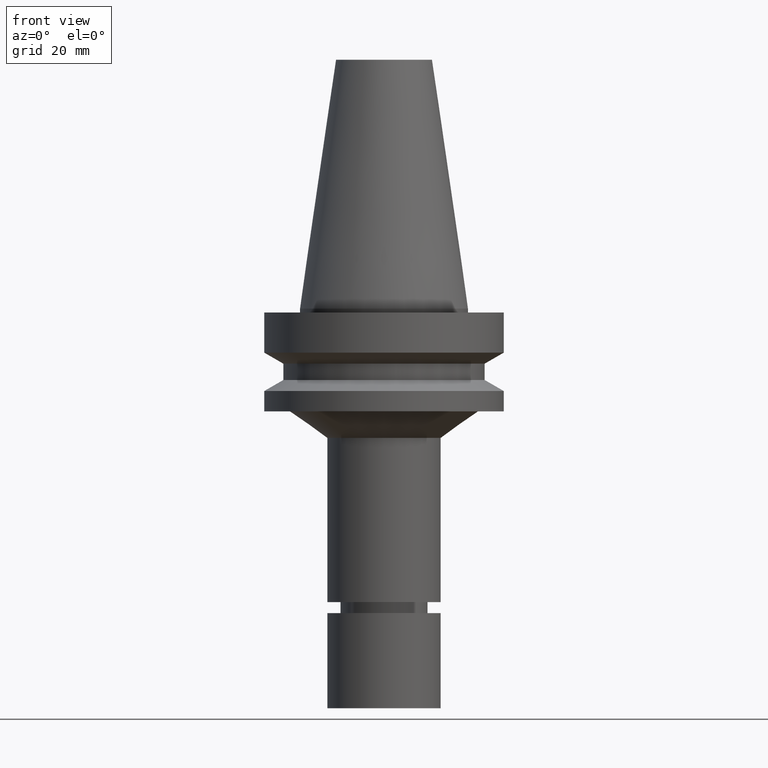
[diagram: clean part render]
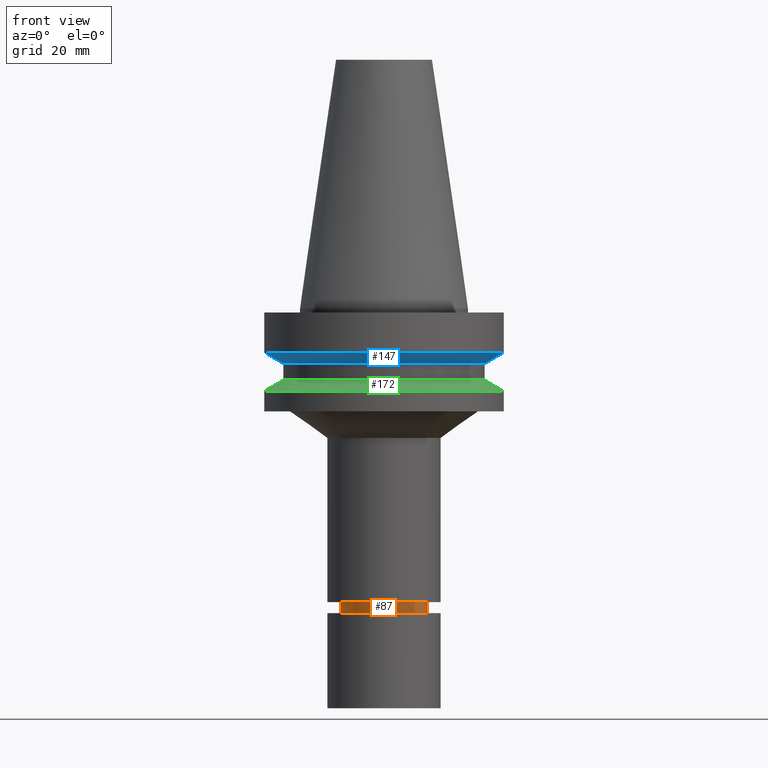
[diagram: same view with three faces highlighted in distinct colors, each labeled with its STEP entity id]
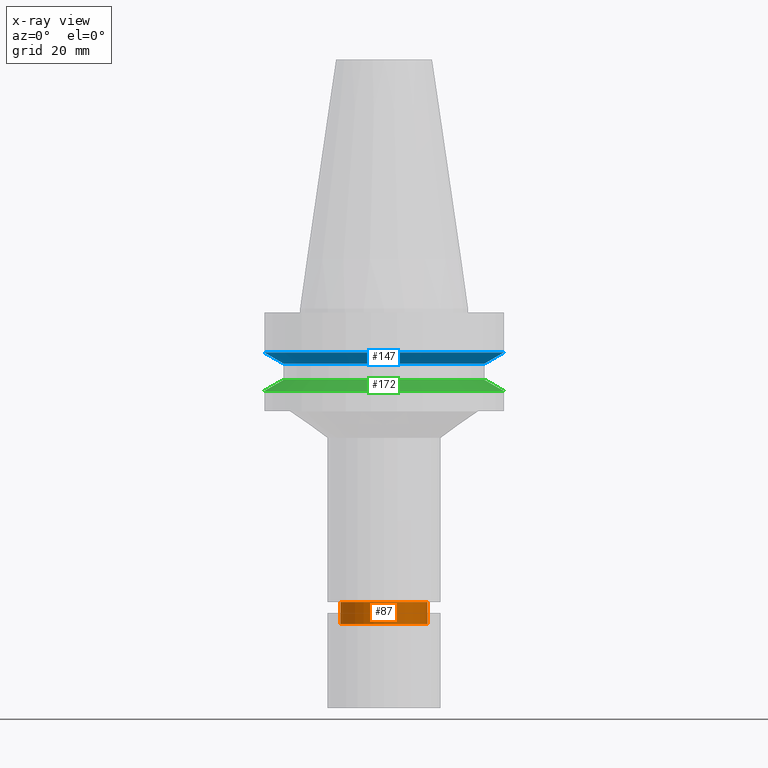
[diagram: x-ray of the same camera — body ghosted, the three highlighted faces saturated]
A machine part, front view with three faces highlighted in distinct colors.
The next image is the same camera in x-ray (body ghosted, the three faces saturated) — at least one of them is partly hidden behind the body in this view.
Their STEP definitions:

[orange] entity #87 — the highlighted cylindrical surface (bore or boss wall) has radius 11.5 mm, axis along (0, -0, -1).
#87=ADVANCED_FACE('Unnamed[1]',(#219,#220),#221,.T.);
#98=EDGE_CURVE('Unnamed[1]',#237,#237,#238,.T.);
#159=EDGE_CURVE('Unnamed[1]',#330,#330,#331,.T.);
#219=FACE_BOUND('',#399,.T.);
#220=FACE_BOUND('',#400,.T.);
#221=CYLINDRICAL_SURFACE('',#401,11.4999999999963);
#237=VERTEX_POINT('',#422);
#238=CIRCLE('',#423,11.4999999999906);
#330=VERTEX_POINT('',#536);
#331=CIRCLE('',#537,11.500000000002);
#399=EDGE_LOOP('',(#601));
#400=EDGE_LOOP('',(#602));
#401=AXIS2_PLACEMENT_3D('',#603,#604,#605);
#422=CARTESIAN_POINT('',(4.72101341071305E-015,11.4999999999907,-77.1000000000001));
#423=AXIS2_PLACEMENT_3D('',#621,#622,#623);
#536=CARTESIAN_POINT('',(5.07685443047376E-015,11.5000000000021,-82.9113248653973));
#537=AXIS2_PLACEMENT_3D('',#723,#724,#725);
#601=ORIENTED_EDGE('',*,*,#159,.F.);
#602=ORIENTED_EDGE('',*,*,#98,.T.);
#603=CARTESIAN_POINT('',(4.89893392059341E-015,7.24880283203154E-014,-80.0056624326987));
#604=DIRECTION('',(6.12323399573677E-017,-3.19681415020243E-017,-1.0));
#605=DIRECTION('',(-2.86966862251183E-033,1.0,-3.19681415020243E-017));
#621=CARTESIAN_POINT('',(4.72101341071305E-015,7.25809169481211E-014,-77.1000000000001));
#622=DIRECTION('',(6.12323399573677E-017,-3.19681415020243E-017,-1.0));
#623=DIRECTION('',(-2.86966862251183E-033,1.0,-3.19681415020243E-017));
#723=CARTESIAN_POINT('',(5.07685443047376E-015,7.23951396925098E-014,-82.9113248653973));
#724=DIRECTION('',(6.12323399573677E-017,-3.19681415020244E-017,-1.0));
#725=DIRECTION('',(-2.86966862251183E-033,1.0,-3.19681415020243E-017));

[blue] entity #147 — the highlighted conical surface has half-angle 60 deg.
#91=EDGE_CURVE('Unnamed[1]',#226,#226,#227,.T.);
#147=ADVANCED_FACE('Unnamed[1]',(#311,#312),#313,.T.);
#164=EDGE_CURVE('Unnamed[1]',#337,#337,#338,.T.);
#226=VERTEX_POINT('',#408);
#227=CIRCLE('',#409,26.4999999999994);
#311=FACE_BOUND('',#512,.T.);
#312=FACE_BOUND('',#513,.T.);
#313=CONICAL_SURFACE('',#514,28.9999999999998,1.04719755119657);
#337=VERTEX_POINT('',#545);
#338=CIRCLE('',#546,31.5000000000003);
#408=CARTESIAN_POINT('',(8.8494551369045E-016,26.4999999999995,-14.4522569986152));
#409=AXIS2_PLACEMENT_3D('',#609,#610,#611);
#512=EDGE_LOOP('',(#701));
#513=EDGE_LOOP('',(#702));
#514=AXIS2_PLACEMENT_3D('',#703,#704,#705);
#545=CARTESIAN_POINT('',(7.08182973902924E-016,31.5000000000004,-11.5655056526664));
#546=AXIS2_PLACEMENT_3D('',#731,#732,#733);
#609=CARTESIAN_POINT('',(8.8494551369045E-016,7.45836488611718E-014,-14.4522569986152));
#610=DIRECTION('',(6.12323399573677E-017,-3.19681415020244E-017,-1.0));
#611=DIRECTION('',(-2.86966862251183E-033,1.0,-3.19681415020244E-017));
#701=ORIENTED_EDGE('',*,*,#91,.F.);
#702=ORIENTED_EDGE('',*,*,#164,.T.);
#703=CARTESIAN_POINT('',(7.96564243796687E-016,7.4629790898926E-014,-13.0088813256408));
#704=DIRECTION('',(-6.12323399573677E-017,3.19681415020243E-017,1.0));
#705=DIRECTION('',(-2.86966862251184E-033,1.0,-3.19681415020243E-017));
#731=CARTESIAN_POINT('',(7.08182973902924E-016,7.46759329366802E-014,-11.5655056526664));
#732=DIRECTION('',(6.12323399573677E-017,-3.19681415020243E-017,-1.0));
#733=DIRECTION('',(-2.86966862251183E-033,1.0,-3.19681415020243E-017));

[green] entity #172 — the highlighted conical surface has half-angle 60 deg.
#115=EDGE_CURVE('Unnamed[1]',#262,#262,#263,.T.);
#166=EDGE_CURVE('Unnamed[1]',#340,#340,#341,.T.);
#172=ADVANCED_FACE('Unnamed[1]',(#349,#350),#351,.T.);
#262=VERTEX_POINT('',#453);
#263=CIRCLE('',#454,26.5);
#340=VERTEX_POINT('',#549);
#341=CIRCLE('',#550,31.5000000000006);
#349=FACE_BOUND('',#560,.T.);
#350=FACE_BOUND('',#561,.T.);
#351=CONICAL_SURFACE('',#562,29.0000000000003,1.04719755119651);
#453=CARTESIAN_POINT('',(1.1479681728942E-015,26.5,-18.7477430013855));
#454=AXIS2_PLACEMENT_3D('',#646,#647,#648);
#549=CARTESIAN_POINT('',(1.32473071268174E-015,31.5000000000007,-21.6344943473346));
#550=AXIS2_PLACEMENT_3D('',#734,#735,#736);
#560=EDGE_LOOP('',(#744));
#561=EDGE_LOOP('',(#745));
#562=AXIS2_PLACEMENT_3D('',#746,#747,#748);
#646=CARTESIAN_POINT('',(1.1479681728942E-015,7.44463301568153E-014,-18.7477430013855));
#647=DIRECTION('',(6.12323399573677E-017,-3.19681415020243E-017,-1.0));
#648=DIRECTION('',(-2.86966862251183E-033,1.0,-3.19681415020243E-017));
#734=CARTESIAN_POINT('',(1.32473071268174E-015,7.43540460813068E-014,-21.6344943473346));
#735=DIRECTION('',(6.12323399573677E-017,-3.19681415020243E-017,-1.0));
#736=DIRECTION('',(-2.86966862251183E-033,1.0,-3.19681415020243E-017));
#744=ORIENTED_EDGE('',*,*,#166,.F.);
#745=ORIENTED_EDGE('',*,*,#115,.T.);
#746=CARTESIAN_POINT('',(1.23634944278797E-015,7.4400188119061E-014,-20.1911186743601));
#747=DIRECTION('',(6.12323399573677E-017,-3.19681415020243E-017,-1.0));
#748=DIRECTION('',(-2.86966862251183E-033,1.0,-3.19681415020243E-017));